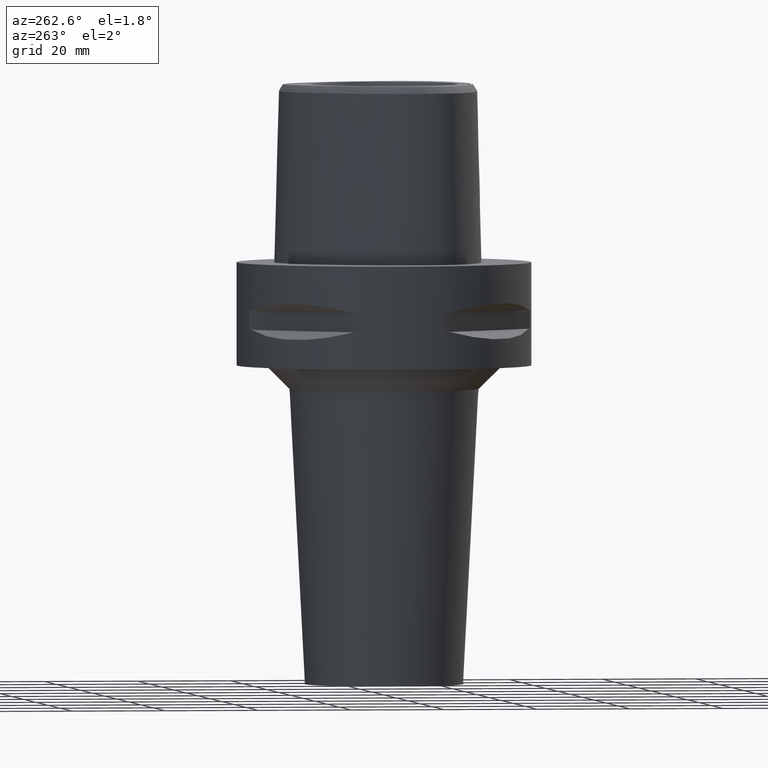
[diagram: clean part render]
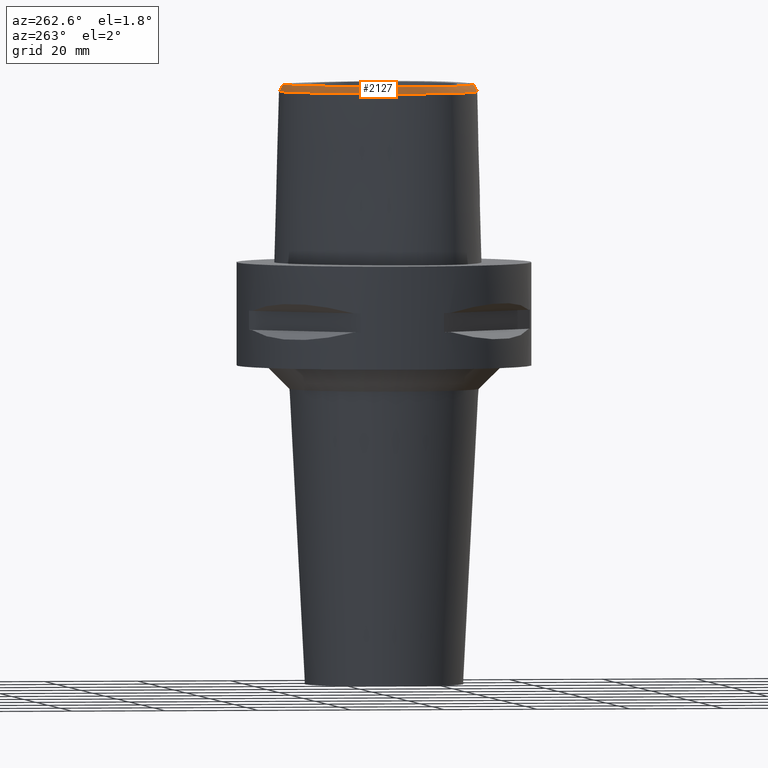
[diagram: same view with one face highlighted and labeled with its STEP entity id]
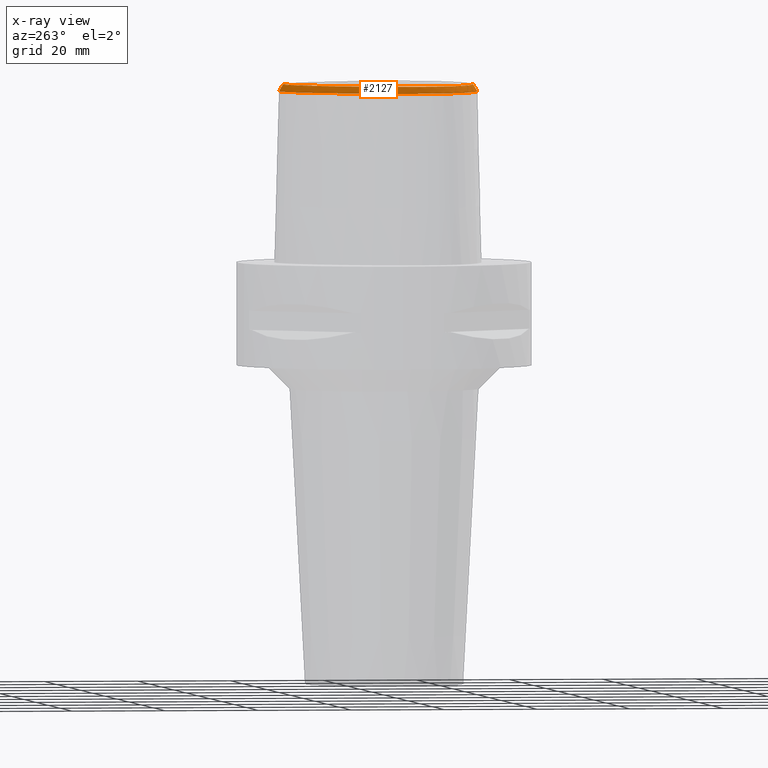
[diagram: x-ray of the same camera — body ghosted, the highlighted face saturated]
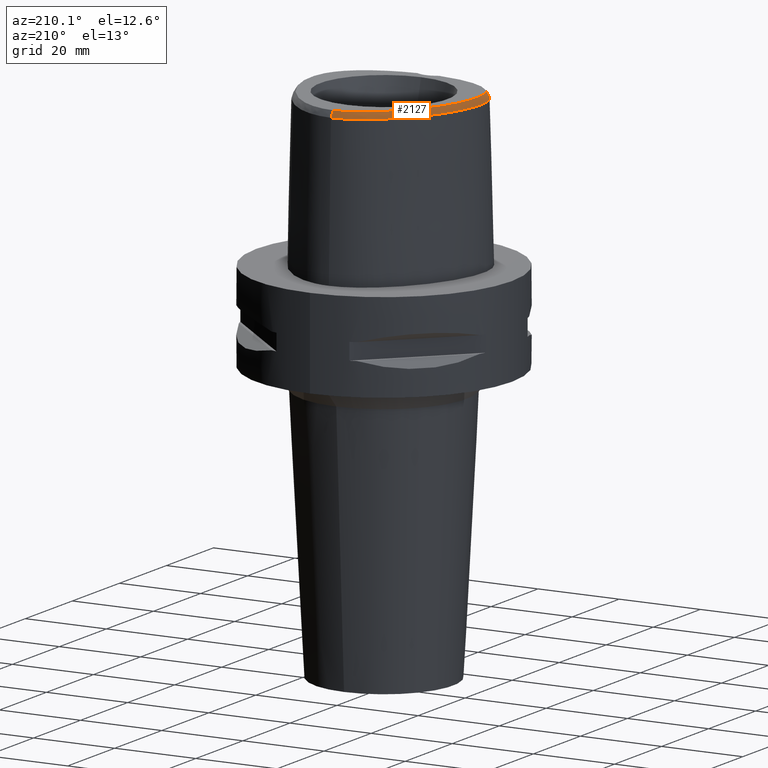
[diagram: same view with one face highlighted and labeled with its STEP entity id]
A machine part, auxiliary view. The second image highlights one B-rep face of the part: STEP entity #2127.
The next image is the same camera in x-ray: the body ghosted, the highlighted face saturated — about 0% of this face is hidden behind the body in this view.
A second angle (auxiliary view) of the same face is appended — the face is thin or edge-on in the first view.
In plain terms, the highlighted face is a freeform B-spline surface patch.
Its self-contained STEP definition (entity closure, byte-faithful):
#34=CARTESIAN_POINT('',(-2.682279906005E0,-1.878035848610E1,3.8E1));
#35=CARTESIAN_POINT('',(-3.554745186500E0,-1.871053012336E1,3.8E1));
#36=CARTESIAN_POINT('',(-5.210524642511E0,-1.851005472707E1,3.8E1));
#37=CARTESIAN_POINT('',(-7.481820606332E0,-1.805414482233E1,3.8E1));
#38=CARTESIAN_POINT('',(-9.388629737489E0,-1.752021117052E1,3.8E1));
#39=CARTESIAN_POINT('',(-1.105988093421E1,-1.692382589844E1,3.8E1));
#40=CARTESIAN_POINT('',(-1.257273407983E1,-1.625602898846E1,3.8E1));
#41=CARTESIAN_POINT('',(-1.394636164076E1,-1.551851844716E1,3.8E1));
#42=CARTESIAN_POINT('',(-1.519723893366E1,-1.470563590488E1,3.8E1));
#43=CARTESIAN_POINT('',(-1.629987669152E1,-1.383555814823E1,3.8E1));
#44=CARTESIAN_POINT('',(-1.722382547893E1,-1.294974683492E1,3.8E1));
#45=CARTESIAN_POINT('',(-1.799280542115E1,-1.205130892289E1,3.8E1));
#46=CARTESIAN_POINT('',(-1.862277302367E1,-1.114527829987E1,3.8E1));
#47=CARTESIAN_POINT('',(-1.914471250170E1,-1.020005954782E1,3.8E1));
#48=CARTESIAN_POINT('',(-1.958689710711E1,-9.161844961304E0,3.8E1));
#49=CARTESIAN_POINT('',(-1.994895052998E1,-8.003012310217E0,3.8E1));
#50=CARTESIAN_POINT('',(-2.021913419093E1,-6.707310529648E0,3.8E1));
#51=CARTESIAN_POINT('',(-2.037862713369E1,-5.260126806659E0,3.8E1));
#52=CARTESIAN_POINT('',(-2.040929526739E1,-3.744513476480E0,3.8E1));
#53=CARTESIAN_POINT('',(-2.031386042842E1,-2.159779309662E0,3.8E1));
#54=CARTESIAN_POINT('',(-2.008528218217E1,-4.816655878051E-1,3.8E1));
#55=CARTESIAN_POINT('',(-1.970718262198E1,1.318914828953E0,3.8E1));
#56=CARTESIAN_POINT('',(-1.913403775442E1,3.330775101983E0,3.8E1));
#57=CARTESIAN_POINT('',(-1.829014630435E1,5.612769647033E0,3.8E1));
#58=CARTESIAN_POINT('',(-1.720717265537E1,7.949996872345E0,3.8E1));
#59=CARTESIAN_POINT('',(-1.593597440448E1,1.021626417652E1,3.8E1));
#60=CARTESIAN_POINT('',(-1.449963287290E1,1.237017749427E1,3.8E1));
#61=CARTESIAN_POINT('',(-1.295559927658E1,1.433099815787E1,3.8E1));
#62=CARTESIAN_POINT('',(-1.145760956641E1,1.595447313470E1,3.8E1));
#63=CARTESIAN_POINT('',(-1.006384058180E1,1.726113939881E1,3.8E1));
#64=CARTESIAN_POINT('',(-8.720729271550E0,1.835292592991E1,3.8E1));
#65=CARTESIAN_POINT('',(-7.393346320994E0,1.927842919863E1,3.8E1));
#66=CARTESIAN_POINT('',(-6.063268235642E0,2.005799180580E1,3.8E1));
#67=CARTESIAN_POINT('',(-4.734151149810E0,2.068987554008E1,3.8E1));
#68=CARTESIAN_POINT('',(-3.447181872753E0,2.115973021232E1,3.8E1));
#69=CARTESIAN_POINT('',(-2.238340982909E0,2.147190402496E1,3.8E1));
#70=CARTESIAN_POINT('',(-1.096801530596E0,2.164912708644E1,3.8E1));
#71=CARTESIAN_POINT('',(-3.603758728524E-1,2.168728795389E1,3.8E1));
#72=CARTESIAN_POINT('',(-3.470663397238E-11,2.168728795390E1,3.8E1));
#189=CARTESIAN_POINT('',(-2.682279906005E0,-1.878035848610E1,3.8E1));
#190=CARTESIAN_POINT('',(-2.797939424828E0,-1.885387923478E1,3.786056636537E1));
#191=CARTESIAN_POINT('',(-3.023213750519E0,-1.901046786247E1,3.756458643908E1));
#192=CARTESIAN_POINT('',(-3.340820240641E0,-1.927223927761E1,3.707376897344E1));
#193=CARTESIAN_POINT('',(-3.541120769139E0,-1.946725359577E1,3.671132817198E1));
#194=CARTESIAN_POINT('',(-3.637738201364E0,-1.956971413237E1,3.652186244848E1));
#199=CARTESIAN_POINT('',(-3.637738201364E0,-1.956971413237E1,3.652186244848E1));
#200=CARTESIAN_POINT('',(-4.502285094284E0,-1.947759963214E1,3.652183635307E1));
#201=CARTESIAN_POINT('',(-6.152121741733E0,-1.923442121091E1,3.652187937980E1));
#202=CARTESIAN_POINT('',(-8.374293971739E0,-1.873006074874E1,3.652185842930E1));
#203=CARTESIAN_POINT('',(-1.025076696571E1,-1.815679334677E1,3.652186581979E1));
#204=CARTESIAN_POINT('',(-1.192055141108E1,-1.751583045687E1,3.652186767152E1));
#205=CARTESIAN_POINT('',(-1.344565935085E1,-1.679680287323E1,3.652186443259E1));
#206=CARTESIAN_POINT('',(-1.484466031577E1,-1.599674716729E1,3.652186787333E1));
#207=CARTESIAN_POINT('',(-1.611531230265E1,-1.511537834981E1,3.652186886168E1));
#208=CARTESIAN_POINT('',(-1.720129497165E1,-1.420213366641E1,3.652186730944E1));
#209=CARTESIAN_POINT('',(-1.811714115733E1,-1.327074087094E1,3.652187099595E1));
#210=CARTESIAN_POINT('',(-1.888133094326E1,-1.232547534622E1,3.652184867083E1));
#211=CARTESIAN_POINT('',(-1.951527995538E1,-1.136083179833E1,3.652186675501E1));
#212=CARTESIAN_POINT('',(-2.004535829937E1,-1.034293081832E1,3.652187065339E1));
#213=CARTESIAN_POINT('',(-2.049379027070E1,-9.224936973801E0,3.652187625792E1));
#214=CARTESIAN_POINT('',(-2.085571439820E1,-7.984708117889E0,3.652186311960E1));
#215=CARTESIAN_POINT('',(-2.111905931742E1,-6.610589902540E0,3.652187122394E1));
#216=CARTESIAN_POINT('',(-2.126642786072E1,-5.076561439784E0,3.652186943527E1));
#217=CARTESIAN_POINT('',(-2.127803792925E1,-3.470136083689E0,3.652186869773E1));
#218=CARTESIAN_POINT('',(-2.115663247646E1,-1.800410333281E0,3.652186269198E1));
#219=CARTESIAN_POINT('',(-2.089658335990E1,-4.659677659016E-2,
3.652187397262E1));
#220=CARTESIAN_POINT('',(-2.048028255217E1,1.835372898458E0,3.652186958404E1));
#221=CARTESIAN_POINT('',(-1.984559281790E1,3.966127147927E0,3.652186039163E1));
#222=CARTESIAN_POINT('',(-1.894810376216E1,6.302171088854E0,3.652185537764E1));
#223=CARTESIAN_POINT('',(-1.782389740217E1,8.661485210431E0,3.652186607186E1));
#224=CARTESIAN_POINT('',(-1.651006368576E1,1.095088642360E1,3.652186222901E1));
#225=CARTESIAN_POINT('',(-1.503962721715E1,1.311336732432E1,3.652187367779E1));
#226=CARTESIAN_POINT('',(-1.346551785376E1,1.508027545360E1,3.652184842186E1));
#227=CARTESIAN_POINT('',(-1.192761011651E1,1.672243131558E1,3.652187365880E1));
#228=CARTESIAN_POINT('',(-1.049634663886E1,1.804474300624E1,3.652186476544E1));
#229=CARTESIAN_POINT('',(-9.103780083675E0,1.915987230638E1,3.652186639341E1));
#230=CARTESIAN_POINT('',(-7.717946666169E0,2.010984893632E1,3.652186851169E1));
#231=CARTESIAN_POINT('',(-6.319391111493E0,2.091262427063E1,3.652186521710E1));
#232=CARTESIAN_POINT('',(-4.930390754678E0,2.155611511372E1,3.652187379540E1));
#233=CARTESIAN_POINT('',(-3.594133322587E0,2.202985088846E1,3.652186395553E1));
#234=CARTESIAN_POINT('',(-2.339366182065E0,2.234460152983E1,3.652187989978E1));
#235=CARTESIAN_POINT('',(-1.137810638781E0,2.252429990262E1,3.652177990641E1));
#236=CARTESIAN_POINT('',(-3.803750591736E-1,2.256201468012E1,3.652186680743E1));
#237=CARTESIAN_POINT('',(-1.617285911022E-11,2.256201468012E1,
3.652186680744E1));
#242=DIRECTION('',(-1.079073595906E-11,-5.092834681090E-1,8.605988316927E-1));
#243=VECTOR('',#242,1.717563559379E0);
#244=CARTESIAN_POINT('',(-1.617285911022E-11,2.256201468012E1,
3.652186680744E1));
#245=LINE('',#244,#243);
#249=CARTESIAN_POINT('',(-3.637738201364E0,-1.956971413237E1,3.652186244848E1));
#1415=CARTESIAN_POINT('',(-2.682279906007E0,-1.878035848610E1,3.8E1));
#1417=VERTEX_POINT('',#1415);
#1420=VERTEX_POINT('',#72);
#1431=VERTEX_POINT('',#249);
#1432=CARTESIAN_POINT('',(-1.617285911022E-11,2.256201468012E1,
3.652186680744E1));
#1433=VERTEX_POINT('',#1432);
#1871=CARTESIAN_POINT('',(5.892707386227E-1,2.157573706597E1,3.816189710680E1));
#1872=CARTESIAN_POINT('',(6.089858062373E-1,2.193062981588E1,3.756123843754E1));
#1873=CARTESIAN_POINT('',(6.287008738519E-1,2.228552256579E1,3.696057976829E1));
#1874=CARTESIAN_POINT('',(6.484159414666E-1,2.264041531570E1,3.635992109903E1));
#1875=CARTESIAN_POINT('',(3.877767007172E-1,2.158615270016E1,3.816189705936E1));
#1876=CARTESIAN_POINT('',(4.009839809811E-1,2.194142278598E1,3.756123856612E1));
#1877=CARTESIAN_POINT('',(4.141912612449E-1,2.229669287180E1,3.696058007288E1));
#1878=CARTESIAN_POINT('',(4.273985415088E-1,2.265196295763E1,3.635992157964E1));
#1879=CARTESIAN_POINT('',(-2.535095234717E-2,2.159745101621E1,
3.816189702664E1));
#1880=CARTESIAN_POINT('',(-2.612429434916E-2,2.195311624639E1,
3.756123865477E1));
#1881=CARTESIAN_POINT('',(-2.689763635114E-2,2.230878147656E1,
3.696058028290E1));
#1882=CARTESIAN_POINT('',(-2.767097835312E-2,2.266444670673E1,
3.635992191103E1));
#1883=CARTESIAN_POINT('',(-6.438920775340E-1,2.157810176158E1,
3.816189708266E1));
#1884=CARTESIAN_POINT('',(-6.661785471282E-1,2.193309027598E1,
3.756123850294E1));
#1885=CARTESIAN_POINT('',(-6.884650167225E-1,2.228807879038E1,
3.696057992321E1));
#1886=CARTESIAN_POINT('',(-7.107514863167E-1,2.264306730478E1,
3.635992134349E1));
#1887=CARTESIAN_POINT('',(-1.311756791576E0,2.151586447401E1,3.816189711697E1));
#1888=CARTESIAN_POINT('',(-1.355973142736E0,2.186878657302E1,3.756123840998E1));
#1889=CARTESIAN_POINT('',(-1.400189493896E0,2.222170867203E1,3.696057970299E1));
#1890=CARTESIAN_POINT('',(-1.444405845056E0,2.257463077105E1,3.635992099599E1));
#1891=CARTESIAN_POINT('',(-1.999306263383E0,2.140859378355E1,3.816189706031E1));
#1892=CARTESIAN_POINT('',(-2.065045668507E0,2.175814148947E1,3.756123856351E1));
#1893=CARTESIAN_POINT('',(-2.130785073631E0,2.210768919539E1,3.696058006671E1));
#1894=CARTESIAN_POINT('',(-2.196524478754E0,2.245723690131E1,3.635992156992E1));
#1895=CARTESIAN_POINT('',(-2.712329802135E0,2.125261848085E1,3.816189700082E1));
#1896=CARTESIAN_POINT('',(-2.799029674555E0,2.159755835142E1,3.756123872477E1));
#1897=CARTESIAN_POINT('',(-2.885729546975E0,2.194249822199E1,3.696058044873E1));
#1898=CARTESIAN_POINT('',(-2.972429419396E0,2.228743809256E1,3.635992217269E1));
#1899=CARTESIAN_POINT('',(-3.452169988723E0,2.104367840293E1,3.816189701365E1));
#1900=CARTESIAN_POINT('',(-3.559196791336E0,2.138285502945E1,3.756123868997E1));
#1901=CARTESIAN_POINT('',(-3.666223593950E0,2.172203165597E1,3.696058036630E1));
#1902=CARTESIAN_POINT('',(-3.773250396564E0,2.206120828250E1,3.635992204262E1));
#1903=CARTESIAN_POINT('',(-4.220427142095E0,2.077702340671E1,3.816189706146E1));
#1904=CARTESIAN_POINT('',(-4.347061174264E0,2.110936993006E1,3.756123856040E1));
#1905=CARTESIAN_POINT('',(-4.473695206433E0,2.144171645342E1,3.696058005933E1));
#1906=CARTESIAN_POINT('',(-4.600329238601E0,2.177406297677E1,3.635992155826E1));
#1907=CARTESIAN_POINT('',(-5.019013268174E0,2.044698136874E1,3.816189700954E1));
#1908=CARTESIAN_POINT('',(-5.164476896077E0,2.077151989159E1,3.756123870111E1));
#1909=CARTESIAN_POINT('',(-5.309940523980E0,2.109605841445E1,3.696058039268E1));
#1910=CARTESIAN_POINT('',(-5.455404151883E0,2.142059693731E1,3.635992208425E1));
#1911=CARTESIAN_POINT('',(-5.849490027982E0,2.004722025586E1,3.816189699572E1));
#1912=CARTESIAN_POINT('',(-6.012933966932E0,2.036307715152E1,3.756123873861E1));
#1913=CARTESIAN_POINT('',(-6.176377905882E0,2.067893404717E1,3.696058048150E1));
#1914=CARTESIAN_POINT('',(-6.339821844832E0,2.099479094282E1,3.635992222440E1));
#1915=CARTESIAN_POINT('',(-6.710763926111E0,1.957196888211E1,3.816189705835E1));
#1916=CARTESIAN_POINT('',(-6.891335190621E0,1.987834828074E1,3.756123856883E1));
#1917=CARTESIAN_POINT('',(-7.071906455131E0,2.018472767937E1,3.696058007931E1));
#1918=CARTESIAN_POINT('',(-7.252477719640E0,2.049110707800E1,3.635992158979E1));
#1919=CARTESIAN_POINT('',(-7.602176874557E0,1.901468736992E1,3.816189705468E1));
#1920=CARTESIAN_POINT('',(-7.798984200425E0,1.931088981615E1,3.756123857877E1));
#1921=CARTESIAN_POINT('',(-7.995791526293E0,1.960709226238E1,3.696058010287E1));
#1922=CARTESIAN_POINT('',(-8.192598852162E0,1.990329470861E1,3.635992162696E1));
#1923=CARTESIAN_POINT('',(-8.521037836090E0,1.836964212793E1,3.816189711105E1));
#1924=CARTESIAN_POINT('',(-8.733192837349E0,1.865504484556E1,3.756123842602E1));
#1925=CARTESIAN_POINT('',(-8.945347838608E0,1.894044756320E1,3.696057974099E1));
#1926=CARTESIAN_POINT('',(-9.157502839867E0,1.922585028083E1,3.635992105595E1));
#1927=CARTESIAN_POINT('',(-9.463250748074E0,1.763172377221E1,3.816189690697E1));
#1928=CARTESIAN_POINT('',(-9.689889472516E0,1.790575796226E1,3.756123897911E1));
#1929=CARTESIAN_POINT('',(-9.916528196957E0,1.817979215230E1,3.696058105126E1));
#1930=CARTESIAN_POINT('',(-1.014316692140E1,1.845382634234E1,3.635992312340E1));
#1931=CARTESIAN_POINT('',(-1.042487444914E1,1.679564897635E1,3.816189666171E1));
#1932=CARTESIAN_POINT('',(-1.066510428727E1,1.705784193687E1,3.756123964380E1));
#1933=CARTESIAN_POINT('',(-1.090533412539E1,1.732003489740E1,3.696058262589E1));
#1934=CARTESIAN_POINT('',(-1.114556396351E1,1.758222785792E1,3.635992560798E1));
#1935=CARTESIAN_POINT('',(-1.139745454635E1,1.586005589364E1,3.816189668118E1));
#1936=CARTESIAN_POINT('',(-1.165043579134E1,1.610996075E1,3.756123959100E1));
#1937=CARTESIAN_POINT('',(-1.190341703633E1,1.635986560636E1,3.696058250082E1));
#1938=CARTESIAN_POINT('',(-1.215639828132E1,1.660977046272E1,3.635992541064E1));
#1939=CARTESIAN_POINT('',(-1.236976584917E1,1.482734915213E1,3.816189697229E1));
#1940=CARTESIAN_POINT('',(-1.263468043606E1,1.506456096419E1,3.756123880207E1));
#1941=CARTESIAN_POINT('',(-1.289959502295E1,1.530177277626E1,3.696058063186E1));
#1942=CARTESIAN_POINT('',(-1.316450960984E1,1.553898458832E1,3.635992246164E1));
#1943=CARTESIAN_POINT('',(-1.332994286575E1,1.370227928626E1,3.816189710949E1));
#1944=CARTESIAN_POINT('',(-1.360602648217E1,1.392638775589E1,3.756123843025E1));
#1945=CARTESIAN_POINT('',(-1.388211009858E1,1.415049622552E1,3.696057975102E1));
#1946=CARTESIAN_POINT('',(-1.415819371500E1,1.437460469514E1,3.635992107178E1));
#1947=CARTESIAN_POINT('',(-1.426680895871E1,1.249084125682E1,3.816189698747E1));
#1948=CARTESIAN_POINT('',(-1.455328604641E1,1.270149645552E1,3.756123876094E1));
#1949=CARTESIAN_POINT('',(-1.483976313411E1,1.291215165422E1,3.696058053441E1));
#1950=CARTESIAN_POINT('',(-1.512624022181E1,1.312280685292E1,3.635992230788E1));
#1951=CARTESIAN_POINT('',(-1.516710353018E1,1.120412247547E1,3.816189695946E1));
#1952=CARTESIAN_POINT('',(-1.546325040169E1,1.140094879487E1,3.756123883686E1));
#1953=CARTESIAN_POINT('',(-1.575939727320E1,1.159777511426E1,3.696058071425E1));
#1954=CARTESIAN_POINT('',(-1.605554414471E1,1.179460143366E1,3.635992259164E1));
#1955=CARTESIAN_POINT('',(-1.60158222E1,9.859520024579E0,3.816189705695E1));
#1956=CARTESIAN_POINT('',(-1.632093318116E1,1.004214166179E1,3.756123857266E1));
#1957=CARTESIAN_POINT('',(-1.662604416232E1,1.022476329899E1,3.696058008838E1));
#1958=CARTESIAN_POINT('',(-1.693115514347E1,1.040738493620E1,3.635992160409E1));
#1959=CARTESIAN_POINT('',(-1.680200627310E1,8.472542381368E0,3.816189702048E1));
#1960=CARTESIAN_POINT('',(-1.711541089898E1,8.640533403716E0,3.756123867148E1));
#1961=CARTESIAN_POINT('',(-1.742881552486E1,8.808524426064E0,3.696058032249E1));
#1962=CARTESIAN_POINT('',(-1.774222015073E1,8.976515448413E0,3.635992197349E1));
#1963=CARTESIAN_POINT('',(-1.751775095585E1,7.057538498816E0,3.816189695659E1));
#1964=CARTESIAN_POINT('',(-1.783874569844E1,7.210529390863E0,3.756123884460E1));
#1965=CARTESIAN_POINT('',(-1.815974044102E1,7.363520282910E0,3.696058073261E1));
#1966=CARTESIAN_POINT('',(-1.848073518360E1,7.516511174957E0,3.635992262062E1));
#1967=CARTESIAN_POINT('',(-1.815464586593E1,5.634156540581E0,3.816189702592E1));
#1968=CARTESIAN_POINT('',(-1.848255358794E1,5.771713293197E0,3.756123865672E1));
#1969=CARTESIAN_POINT('',(-1.881046130995E1,5.909270045814E0,3.696058028752E1));
#1970=CARTESIAN_POINT('',(-1.913836903197E1,6.046826798431E0,3.635992191832E1));
#1971=CARTESIAN_POINT('',(-1.870643944237E1,4.223461977320E0,3.816189711974E1));
#1972=CARTESIAN_POINT('',(-1.904057110998E1,4.345131689047E0,3.756123840246E1));
#1973=CARTESIAN_POINT('',(-1.937470277760E1,4.466801400773E0,3.696057968518E1));
#1974=CARTESIAN_POINT('',(-1.970883444521E1,4.588471112500E0,3.635992096791E1));
#1975=CARTESIAN_POINT('',(-1.917169766777E1,2.840190985310E0,3.816189685290E1));
#1976=CARTESIAN_POINT('',(-1.951134957527E1,2.945484013683E0,3.756123912565E1));
#1977=CARTESIAN_POINT('',(-1.985100148277E1,3.050777042055E0,3.696058139841E1));
#1978=CARTESIAN_POINT('',(-2.019065339028E1,3.156070070427E0,3.635992367116E1));
#1979=CARTESIAN_POINT('',(-1.955150605401E1,1.496414330635E0,3.816189663650E1));
#1980=CARTESIAN_POINT('',(-1.989593372219E1,1.584860236418E0,3.756123971209E1));
#1981=CARTESIAN_POINT('',(-2.024036139038E1,1.673306142201E0,3.696058278767E1));
#1982=CARTESIAN_POINT('',(-2.058478905857E1,1.761752047984E0,3.635992586325E1));
#1983=CARTESIAN_POINT('',(-1.984797648588E1,2.050936298379E-1,
3.816189671133E1));
#1984=CARTESIAN_POINT('',(-2.019640604512E1,2.761828617057E-1,
3.756123950932E1));
#1985=CARTESIAN_POINT('',(-2.054483560436E1,3.472720935734E-1,
3.696058230731E1));
#1986=CARTESIAN_POINT('',(-2.089326516361E1,4.183613254412E-1,
3.635992510530E1));
#1987=CARTESIAN_POINT('',(-2.006535978360E1,-1.024044348295E0,
3.816189700810E1));
#1988=CARTESIAN_POINT('',(-2.041696805416E1,-9.708182356352E-1,
3.756123870503E1));
#1989=CARTESIAN_POINT('',(-2.076857632471E1,-9.175921229757E-1,
3.696058040195E1));
#1990=CARTESIAN_POINT('',(-2.112018459527E1,-8.643660103163E-1,
3.635992209888E1));
#1991=CARTESIAN_POINT('',(-2.020959366165E1,-2.186766392676E0,
3.816189710245E1));
#1992=CARTESIAN_POINT('',(-2.056350458372E1,-2.151937597910E0,
3.756123844934E1));
#1993=CARTESIAN_POINT('',(-2.091741550579E1,-2.117108803143E0,
3.696057979623E1));
#1994=CARTESIAN_POINT('',(-2.127132642785E1,-2.082280008377E0,
3.635992114312E1));
#1995=CARTESIAN_POINT('',(-2.028725892175E1,-3.282653829387E0,
3.816189706221E1));
#1996=CARTESIAN_POINT('',(-2.064252668758E1,-3.266666985170E0,
3.756123855839E1));
#1997=CARTESIAN_POINT('',(-2.099779445341E1,-3.250680140953E0,
3.696058005458E1));
#1998=CARTESIAN_POINT('',(-2.135306221923E1,-3.234693296737E0,
3.635992155076E1));
#1999=CARTESIAN_POINT('',(-2.030475125663E1,-4.310522995315E0,
3.816189704216E1));
#2000=CARTESIAN_POINT('',(-2.066037056698E1,-4.313842111405E0,
3.756123861274E1));
#2001=CARTESIAN_POINT('',(-2.101598987734E1,-4.317161227495E0,
3.696058018332E1));
#2002=CARTESIAN_POINT('',(-2.137160918769E1,-4.320480343585E0,
3.635992175389E1));
#2003=CARTESIAN_POINT('',(-2.026833016878E1,-5.272269664822E0,
3.816189696014E1));
#2004=CARTESIAN_POINT('',(-2.062322716366E1,-5.295276387307E0,
3.756123883499E1));
#2005=CARTESIAN_POINT('',(-2.097812415855E1,-5.318283109792E0,
3.696058070984E1));
#2006=CARTESIAN_POINT('',(-2.133302115343E1,-5.341289832277E0,
3.635992258469E1));
#2007=CARTESIAN_POINT('',(-2.018383057523E1,-6.170325459802E0,
3.816189701332E1));
#2008=CARTESIAN_POINT('',(-2.053686850788E1,-6.213348550099E0,
3.756123869087E1));
#2009=CARTESIAN_POINT('',(-2.088990644052E1,-6.256371640395E0,
3.696058036842E1));
#2010=CARTESIAN_POINT('',(-2.124294437317E1,-6.299394730691E0,
3.635992204597E1));
#2011=CARTESIAN_POINT('',(-2.005657070123E1,-7.007163483386E0,
3.816189707705E1));
#2012=CARTESIAN_POINT('',(-2.040654782563E1,-7.070473691242E0,
3.756123851819E1));
#2013=CARTESIAN_POINT('',(-2.075652495003E1,-7.133783899097E0,
3.696057995933E1));
#2014=CARTESIAN_POINT('',(-2.110650207443E1,-7.197094106953E0,
3.635992140047E1));
#2015=CARTESIAN_POINT('',(-1.989102725648E1,-7.787325974678E0,
3.816189707158E1));
#2016=CARTESIAN_POINT('',(-2.023669098104E1,-7.871074353803E0,
3.756123853300E1));
#2017=CARTESIAN_POINT('',(-2.058235470560E1,-7.954822732929E0,
3.696057999442E1));
#2018=CARTESIAN_POINT('',(-2.092801843016E1,-8.038571112055E0,
3.635992145585E1));
#2019=CARTESIAN_POINT('',(-1.969096670625E1,-8.515050868902E0,
3.816189706133E1));
#2020=CARTESIAN_POINT('',(-2.003101979907E1,-8.619291028452E0,
3.756123856076E1));
#2021=CARTESIAN_POINT('',(-2.037107289189E1,-8.723531188002E0,
3.696058006019E1));
#2022=CARTESIAN_POINT('',(-2.071112598470E1,-8.827771347552E0,
3.635992155962E1));
#2023=CARTESIAN_POINT('',(-1.945941486302E1,-9.194565999753E0,
3.816189701330E1));
#2024=CARTESIAN_POINT('',(-1.979252616627E1,-9.319240298585E0,
3.756123869095E1));
#2025=CARTESIAN_POINT('',(-2.012563746952E1,-9.443914597417E0,
3.696058036861E1));
#2026=CARTESIAN_POINT('',(-2.045874877277E1,-9.568588896249E0,
3.635992204626E1));
#2027=CARTESIAN_POINT('',(-1.919836600767E1,-9.830625220909E0,
3.816189704038E1));
#2028=CARTESIAN_POINT('',(-1.952319148389E1,-9.975532466301E0,
3.756123861753E1));
#2029=CARTESIAN_POINT('',(-1.984801696010E1,-1.012043971169E1,
3.696058019468E1));
#2030=CARTESIAN_POINT('',(-2.017284243632E1,-1.026534695708E1,
3.635992177182E1));
#2031=CARTESIAN_POINT('',(-1.891024965721E1,-1.042526437328E1,
3.816189708735E1));
#2032=CARTESIAN_POINT('',(-1.922545879149E1,-1.059006470596E1,
3.756123849027E1));
#2033=CARTESIAN_POINT('',(-1.954066792576E1,-1.075486503864E1,
3.696057989319E1));
#2034=CARTESIAN_POINT('',(-1.985587706004E1,-1.091966537132E1,
3.635992129612E1));
#2035=CARTESIAN_POINT('',(-1.859410726202E1,-1.098590697808E1,
3.816189703944E1));
#2036=CARTESIAN_POINT('',(-1.889826033339E1,-1.117031895846E1,
3.756123862011E1));
#2037=CARTESIAN_POINT('',(-1.920241340476E1,-1.135473093884E1,
3.696058020078E1));
#2038=CARTESIAN_POINT('',(-1.950656647612E1,-1.153914291922E1,
3.635992178145E1));
#2039=CARTESIAN_POINT('',(-1.823876332368E1,-1.153319957832E1,
3.816189708726E1));
#2040=CARTESIAN_POINT('',(-1.853082004188E1,-1.173621161041E1,
3.756123849048E1));
#2041=CARTESIAN_POINT('',(-1.882287676007E1,-1.193922364249E1,
3.696057989369E1));
#2042=CARTESIAN_POINT('',(-1.911493347826E1,-1.214223567458E1,
3.635992129690E1));
#2043=CARTESIAN_POINT('',(-1.783486020260E1,-1.207831487794E1,
3.816189699858E1));
#2044=CARTESIAN_POINT('',(-1.811384283160E1,-1.229894271415E1,
3.756123873083E1));
#2045=CARTESIAN_POINT('',(-1.839282546059E1,-1.251957055036E1,
3.696058046308E1));
#2046=CARTESIAN_POINT('',(-1.867180808958E1,-1.274019838657E1,
3.635992219532E1));
#2047=CARTESIAN_POINT('',(-1.737976551353E1,-1.261971965131E1,
3.816189705323E1));
#2048=CARTESIAN_POINT('',(-1.764478553430E1,-1.285692850482E1,
3.756123858274E1));
#2049=CARTESIAN_POINT('',(-1.790980555508E1,-1.309413735832E1,
3.696058011225E1));
#2050=CARTESIAN_POINT('',(-1.817482557585E1,-1.333134621183E1,
3.635992164176E1));
#2051=CARTESIAN_POINT('',(-1.686891735275E1,-1.315782599388E1,
3.816189706777E1));
#2052=CARTESIAN_POINT('',(-1.711921686713E1,-1.341050957105E1,
3.756123854331E1));
#2053=CARTESIAN_POINT('',(-1.736951638150E1,-1.366319314821E1,
3.696058001885E1));
#2054=CARTESIAN_POINT('',(-1.761981589588E1,-1.391587672538E1,
3.635992149439E1));
#2055=CARTESIAN_POINT('',(-1.629700000247E1,-1.369261591373E1,
3.816189707792E1));
#2056=CARTESIAN_POINT('',(-1.653193990811E1,-1.395963104851E1,
3.756123851583E1));
#2057=CARTESIAN_POINT('',(-1.676687981375E1,-1.422664618329E1,
3.696057995375E1));
#2058=CARTESIAN_POINT('',(-1.700181971939E1,-1.449366131808E1,
3.635992139167E1));
#2059=CARTESIAN_POINT('',(-1.565884808646E1,-1.422291099117E1,
3.816189704471E1));
#2060=CARTESIAN_POINT('',(-1.587789778635E1,-1.450309979941E1,
3.756123860579E1));
#2061=CARTESIAN_POINT('',(-1.609694748625E1,-1.478328860765E1,
3.696058016686E1));
#2062=CARTESIAN_POINT('',(-1.631599718614E1,-1.506347741589E1,
3.635992172794E1));
#2063=CARTESIAN_POINT('',(-1.494830697845E1,-1.474742583997E1,
3.816189696293E1));
#2064=CARTESIAN_POINT('',(-1.515106146744E1,-1.503961336941E1,
3.756123882746E1));
#2065=CARTESIAN_POINT('',(-1.535381595643E1,-1.533180089885E1,
3.696058069200E1));
#2066=CARTESIAN_POINT('',(-1.555657044542E1,-1.562398842830E1,
3.635992255654E1));
#2067=CARTESIAN_POINT('',(-1.415984243372E1,-1.526351510349E1,
3.816189700998E1));
#2068=CARTESIAN_POINT('',(-1.434599271694E1,-1.556654297592E1,
3.756123869992E1));
#2069=CARTESIAN_POINT('',(-1.453214300015E1,-1.586957084836E1,
3.696058038986E1));
#2070=CARTESIAN_POINT('',(-1.471829328337E1,-1.617259872079E1,
3.635992207980E1));
#2071=CARTESIAN_POINT('',(-1.328894437406E1,-1.576718958527E1,
3.816189706527E1));
#2072=CARTESIAN_POINT('',(-1.345825020834E1,-1.607993239128E1,
3.756123855010E1));
#2073=CARTESIAN_POINT('',(-1.362755604263E1,-1.639267519728E1,
3.696058003493E1));
#2074=CARTESIAN_POINT('',(-1.379686187692E1,-1.670541800328E1,
3.635992151976E1));
#2075=CARTESIAN_POINT('',(-1.233026616765E1,-1.625443103152E1,
3.816189707712E1));
#2076=CARTESIAN_POINT('',(-1.248260528650E1,-1.657577231598E1,
3.756123851796E1));
#2077=CARTESIAN_POINT('',(-1.263494440536E1,-1.689711360044E1,
3.696057995880E1));
#2078=CARTESIAN_POINT('',(-1.278728352421E1,-1.721845488490E1,
3.635992139964E1));
#2079=CARTESIAN_POINT('',(-1.128144609472E1,-1.671932580807E1,
3.816189708403E1));
#2080=CARTESIAN_POINT('',(-1.141672744230E1,-1.704820539599E1,
3.756123849925E1));
#2081=CARTESIAN_POINT('',(-1.155200878988E1,-1.737708498390E1,
3.696057991447E1));
#2082=CARTESIAN_POINT('',(-1.168729013747E1,-1.770596457182E1,
3.635992132970E1));
#2083=CARTESIAN_POINT('',(-1.013949884547E1,-1.715604487213E1,
3.816189680197E1));
#2084=CARTESIAN_POINT('',(-1.025771048421E1,-1.749143159262E1,
3.756123926366E1));
#2085=CARTESIAN_POINT('',(-1.037592212295E1,-1.782681831311E1,
3.696058172535E1));
#2086=CARTESIAN_POINT('',(-1.049413376169E1,-1.816220503361E1,
3.635992418704E1));
#2087=CARTESIAN_POINT('',(-8.902827885790E0,-1.755811676007E1,
3.816189664437E1));
#2088=CARTESIAN_POINT('',(-9.003996120611E0,-1.789902625014E1,
3.756123969080E1));
#2089=CARTESIAN_POINT('',(-9.105164355433E0,-1.823993574022E1,
3.696058273724E1));
#2090=CARTESIAN_POINT('',(-9.206332590254E0,-1.858084523030E1,
3.635992578368E1));
#2091=CARTESIAN_POINT('',(-7.576684076430E0,-1.791698493146E1,
3.816189676483E1));
#2092=CARTESIAN_POINT('',(-7.660853600205E0,-1.826247935265E1,
3.756123936432E1));
#2093=CARTESIAN_POINT('',(-7.745023123980E0,-1.860797377384E1,
3.696058196381E1));
#2094=CARTESIAN_POINT('',(-7.829192647754E0,-1.895346819503E1,
3.635992456330E1));
#2095=CARTESIAN_POINT('',(-6.170257329562E0,-1.822418996597E1,
3.816189707636E1));
#2096=CARTESIAN_POINT('',(-6.237480608830E0,-1.857337373161E1,
3.756123852003E1));
#2097=CARTESIAN_POINT('',(-6.304703888098E0,-1.892255749725E1,
3.696057996370E1));
#2098=CARTESIAN_POINT('',(-6.371927167365E0,-1.927174126290E1,
3.635992140737E1));
#2099=CARTESIAN_POINT('',(-4.693431496772E0,-1.847233924565E1,
3.816189705568E1));
#2100=CARTESIAN_POINT('',(-4.743751670002E0,-1.882435333185E1,
3.756123857610E1));
#2101=CARTESIAN_POINT('',(-4.794071843231E0,-1.917636741805E1,
3.696058009652E1));
#2102=CARTESIAN_POINT('',(-4.844392016461E0,-1.952838150424E1,
3.635992161694E1));
#2103=CARTESIAN_POINT('',(-3.512820942445E0,-1.861282247012E1,
3.816189697081E1));
#2104=CARTESIAN_POINT('',(-3.550203790901E0,-1.896637029104E1,
3.756123880609E1));
#2105=CARTESIAN_POINT('',(-3.587586639358E0,-1.931991811195E1,
3.696058064137E1));
#2106=CARTESIAN_POINT('',(-3.624969487815E0,-1.967346593287E1,
3.635992247665E1));
#2107=CARTESIAN_POINT('',(-2.631113427102E0,-1.868981820420E1,
3.816189695971E1));
#2108=CARTESIAN_POINT('',(-2.659004639120E0,-1.904419481014E1,
3.756123883616E1));
#2109=CARTESIAN_POINT('',(-2.686895851138E0,-1.939857141608E1,
3.696058071261E1));
#2110=CARTESIAN_POINT('',(-2.714787063156E0,-1.975294802202E1,
3.635992258906E1));
#2111=CARTESIAN_POINT('',(-2.267257983845E0,-1.871557422831E1,
3.816189696482E1));
#2112=CARTESIAN_POINT('',(-2.291262673383E0,-1.907022581229E1,
3.756123882232E1));
#2113=CARTESIAN_POINT('',(-2.315267362921E0,-1.942487739628E1,
3.696058067983E1));
#2114=CARTESIAN_POINT('',(-2.339272052459E0,-1.977952898026E1,
3.635992253733E1));
#2115=CARTESIAN_POINT('',(-2.062725683701E0,-1.872816088095E1,
3.816189697011E1));
#2116=CARTESIAN_POINT('',(-2.084552696738E0,-1.908294645173E1,
3.756123880801E1));
#2117=CARTESIAN_POINT('',(-2.106379709775E0,-1.943773202251E1,
3.696058064592E1));
#2118=CARTESIAN_POINT('',(-2.128206722812E0,-1.979251759329E1,
3.635992248383E1));
#2119=B_SPLINE_SURFACE_WITH_KNOTS('',3,3,((#1871,#1872,#1873,#1874),(#1875,
#1876,#1877,#1878),(#1879,#1880,#1881,#1882),(#1883,#1884,#1885,#1886),(#1887,
#1888,#1889,#1890),(#1891,#1892,#1893,#1894),(#1895,#1896,#1897,#1898),(#1899,
#1900,#1901,#1902),(#1903,#1904,#1905,#1906),(#1907,#1908,#1909,#1910),(#1911,
#1912,#1913,#1914),(#1915,#1916,#1917,#1918),(#1919,#1920,#1921,#1922),(#1923,
#1924,#1925,#1926),(#1927,#1928,#1929,#1930),(#1931,#1932,#1933,#1934),(#1935,
#1936,#1937,#1938),(#1939,#1940,#1941,#1942),(#1943,#1944,#1945,#1946),(#1947,
#1948,#1949,#1950),(#1951,#1952,#1953,#1954),(#1955,#1956,#1957,#1958),(#1959,
#1960,#1961,#1962),(#1963,#1964,#1965,#1966),(#1967,#1968,#1969,#1970),(#1971,
#1972,#1973,#1974),(#1975,#1976,#1977,#1978),(#1979,#1980,#1981,#1982),(#1983,
#1984,#1985,#1986),(#1987,#1988,#1989,#1990),(#1991,#1992,#1993,#1994),(#1995,
#1996,#1997,#1998),(#1999,#2000,#2001,#2002),(#2003,#2004,#2005,#2006),(#2007,
#2008,#2009,#2010),(#2011,#2012,#2013,#2014),(#2015,#2016,#2017,#2018),(#2019,
#2020,#2021,#2022),(#2023,#2024,#2025,#2026),(#2027,#2028,#2029,#2030),(#2031,
#2032,#2033,#2034),(#2035,#2036,#2037,#2038),(#2039,#2040,#2041,#2042),(#2043,
#2044,#2045,#2046),(#2047,#2048,#2049,#2050),(#2051,#2052,#2053,#2054),(#2055,
#2056,#2057,#2058),(#2059,#2060,#2061,#2062),(#2063,#2064,#2065,#2066),(#2067,
#2068,#2069,#2070),(#2071,#2072,#2073,#2074),(#2075,#2076,#2077,#2078),(#2079,
#2080,#2081,#2082),(#2083,#2084,#2085,#2086),(#2087,#2088,#2089,#2090),(#2091,
#2092,#2093,#2094),(#2095,#2096,#2097,#2098),(#2099,#2100,#2101,#2102),(#2103,
#2104,#2105,#2106),(#2107,#2108,#2109,#2110),(#2111,#2112,#2113,#2114),(#2115,
#2116,#2117,#2118)),.UNSPECIFIED.,.F.,.F.,.F.,(4,1,1,1,1,1,1,1,1,1,1,1,1,1,1,1,
1,1,1,1,1,1,1,1,1,1,1,1,1,1,1,1,1,1,1,1,1,1,1,1,1,1,1,1,1,1,1,1,1,1,1,1,1,1,1,1,
1,1,1,4),(4,4),(-1.585043674195E-2,0.E0,1.776034072166E-2,3.552068144392E-2,
5.328102216617E-2,7.104136288843E-2,8.880170361069E-2,1.065620443330E-1,
1.243223850552E-1,1.420827257775E-1,1.598430664997E-1,1.776034072219E-1,
1.953637479442E-1,2.131240886664E-1,2.308844293888E-1,2.486447701110E-1,
2.664051108333E-1,2.841654515555E-1,3.019257922778E-1,3.19686133E-1,
3.374464737223E-1,3.552068144445E-1,3.729671551668E-1,3.907274958891E-1,
4.084878366113E-1,4.262481773336E-1,4.440085180558E-1,4.617688587781E-1,
4.795291995003E-1,4.972895402226E-1,5.150498809448E-1,5.328102216671E-1,
5.505705623894E-1,5.683309031116E-1,5.860912438339E-1,6.038515845561E-1,
6.216119252784E-1,6.393722660006E-1,6.571326067229E-1,6.748929474452E-1,
6.926532881674E-1,7.104136288897E-1,7.281739696119E-1,7.459343103342E-1,
7.636946510564E-1,7.814549917787E-1,7.992153325009E-1,8.169756732232E-1,
8.347360139455E-1,8.524963546678E-1,8.702566953900E-1,8.880170361122E-1,
9.057773768345E-1,9.235377175567E-1,9.412980582790E-1,9.590583990012E-1,
9.768187397236E-1,9.945790804458E-1,1.E0,1.006922200500E0),(-8.608412269193E-2,
1.086110441232E0),.UNSPECIFIED.);
#2120=ORIENTED_EDGE('',*,*,#1608,.T.);
#2122=ORIENTED_EDGE('',*,*,#2121,.T.);
#2123=ORIENTED_EDGE('',*,*,#1864,.T.);
#2124=ORIENTED_EDGE('',*,*,#1578,.F.);
#2125=EDGE_LOOP('',(#2120,#2122,#2123,#2124));
#2126=FACE_OUTER_BOUND('',#2125,.F.);
#73=B_SPLINE_CURVE_WITH_KNOTS('',3,(#34,#35,#36,#37,#38,#39,#40,#41,#42,#43,#44,
#45,#46,#47,#48,#49,#50,#51,#52,#53,#54,#55,#56,#57,#58,#59,#60,#61,#62,#63,#64,
#65,#66,#67,#68,#69,#70,#71,#72),.UNSPECIFIED.,.F.,.F.,(4,1,1,1,1,1,1,1,1,1,1,1,
1,1,1,1,1,1,1,1,1,1,1,1,1,1,1,1,1,1,1,1,1,1,1,1,4),(0.E0,2.777777777778E-2,
5.555555555556E-2,8.333333333333E-2,1.111111111111E-1,1.388888888889E-1,
1.666666666667E-1,1.944444444444E-1,2.222222222222E-1,2.5E-1,2.777777777778E-1,
3.055555555556E-1,3.333333333333E-1,3.611111111111E-1,3.888888888889E-1,
4.166666666667E-1,4.444444444444E-1,4.722222222222E-1,5.E-1,5.277777777778E-1,
5.555555555556E-1,5.833333333333E-1,6.111111111111E-1,6.388888888889E-1,
6.666666666667E-1,6.944444444444E-1,7.222222222222E-1,7.5E-1,7.777777777778E-1,
8.055555555556E-1,8.333333333333E-1,8.611111111111E-1,8.888888888889E-1,
9.166666666667E-1,9.444444444444E-1,9.722222222222E-1,1.E0),.UNSPECIFIED.);
#195=B_SPLINE_CURVE_WITH_KNOTS('',3,(#189,#190,#191,#192,#193,#194),
.UNSPECIFIED.,.F.,.F.,(4,1,1,4),(0.E0,3.333333333333E-1,6.666666666667E-1,1.E0),
.UNSPECIFIED.);
#238=B_SPLINE_CURVE_WITH_KNOTS('',3,(#199,#200,#201,#202,#203,#204,#205,#206,
#207,#208,#209,#210,#211,#212,#213,#214,#215,#216,#217,#218,#219,#220,#221,#222,
#223,#224,#225,#226,#227,#228,#229,#230,#231,#232,#233,#234,#235,#236,#237),
.UNSPECIFIED.,.F.,.F.,(4,1,1,1,1,1,1,1,1,1,1,1,1,1,1,1,1,1,1,1,1,1,1,1,1,1,1,1,
1,1,1,1,1,1,1,1,4),(0.E0,2.777777777778E-2,5.555555555556E-2,8.333333333333E-2,
1.111111111111E-1,1.388888888889E-1,1.666666666667E-1,1.944444444444E-1,
2.222222222222E-1,2.5E-1,2.777777777778E-1,3.055555555556E-1,3.333333333333E-1,
3.611111111111E-1,3.888888888889E-1,4.166666666667E-1,4.444444444444E-1,
4.722222222222E-1,5.E-1,5.277777777778E-1,5.555555555556E-1,5.833333333333E-1,
6.111111111111E-1,6.388888888889E-1,6.666666666667E-1,6.944444444444E-1,
7.222222222222E-1,7.5E-1,7.777777777778E-1,8.055555555556E-1,8.333333333333E-1,
8.611111111111E-1,8.888888888889E-1,9.166666666667E-1,9.444444444444E-1,
9.722222222222E-1,1.E0),.UNSPECIFIED.);
#1578=EDGE_CURVE('',#1417,#1420,#73,.T.);
#1608=EDGE_CURVE('',#1417,#1431,#195,.T.);
#1864=EDGE_CURVE('',#1433,#1420,#245,.T.);
#2121=EDGE_CURVE('',#1431,#1433,#238,.T.);
#2127=ADVANCED_FACE('',(#2126),#2119,.F.);